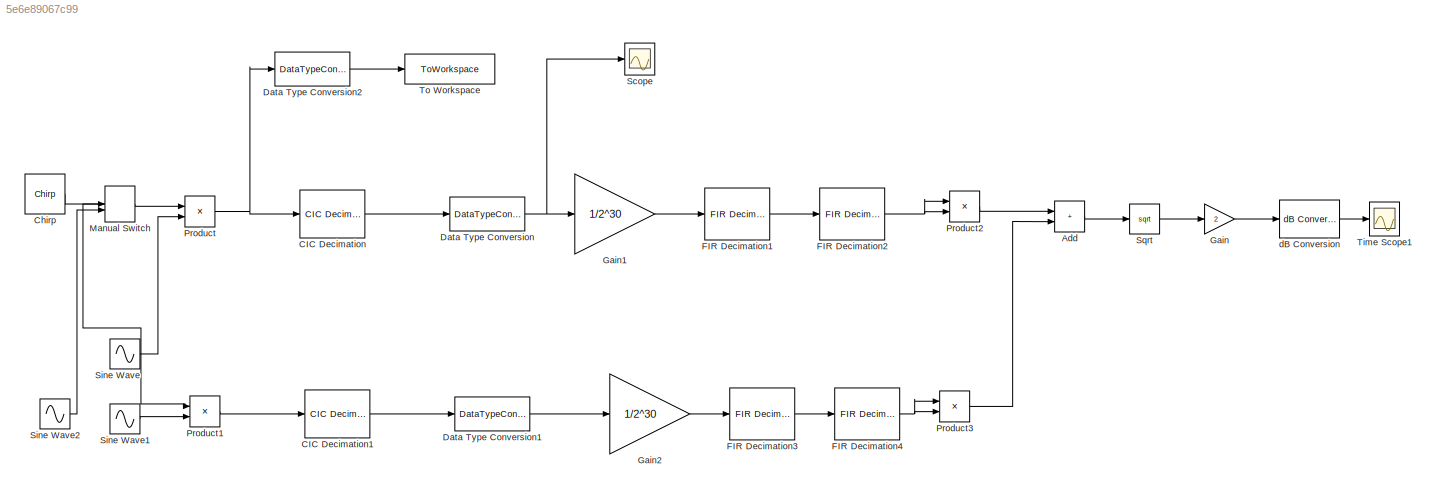
MODEL mdl_5e6e89067c99
KIND model
CONFIG AbsTol = auto
CONFIG EnableMultiTasking = off
CONFIG FixedStep = 1/69.333e3
CONFIG MaxStep = auto
CONFIG MinStep = auto
CONFIG PreLoadFcn = gsmcoeffs
CONFIG RelTol = 1e-3
CONFIG SampleTimeConstraint = Unconstrained
CONFIG SolverName = FixedStepDiscrete
CONFIG StartTime = 0.0
CONFIG StopTime = 4
BLOCK [Sum] Add
  IconShape = rectangular
  Ports = [2, 1]
BLOCK [Reference] CIC Decimation  REF=dspobslib/CIC
Decimation
  Ports = [1, 1]
  SourceBlock = dspobslib/CIC\nDecimation
  SourceProductBaseCode = DS
  SourceType = Obsolete CIC Decimation
  UserDataPersistent = on
BLOCK [Reference] CIC Decimation1  REF=dspmlti4/CIC
Decimation
  Ports = [1, 1]
  SourceBlock = dspmlti4/CIC\nDecimation
  SourceProductBaseCode = DS
  SourceType = CIC Decimation
  UserDataPersistent = on
BLOCK [Reference] Chirp  REF=dspsrcs4/Chirp
  Ports = [0, 1]
  SourceBlock = dspsrcs4/Chirp
  SourceProductBaseCode = DS
  SourceType = Chirp
BLOCK [DataTypeConversion] Data Type Conversion
  OutDataTypeStr = double
  RndMeth = Floor
  SaturateOnIntegerOverflow = off
BLOCK [DataTypeConversion] Data Type Conversion1
  OutDataTypeStr = double
  RndMeth = Floor
  SaturateOnIntegerOverflow = off
BLOCK [DataTypeConversion] Data Type Conversion2
  OutDataTypeStr = double
  RndMeth = Floor
  SaturateOnIntegerOverflow = off
BLOCK [Reference] FIR Decimation1  REF=dspmlti4/FIR
Decimation
  Ports = [1, 1]
  SourceBlock = dspmlti4/FIR\nDecimation
  SourceProductBaseCode = DS
  SourceType = FIR Decimation
  UserDataPersistent = on
BLOCK [Reference] FIR Decimation2  REF=dspmlti4/FIR
Decimation
  Ports = [1, 1]
  SourceBlock = dspmlti4/FIR\nDecimation
  SourceProductBaseCode = DS
  SourceType = FIR Decimation
  UserDataPersistent = on
BLOCK [Reference] FIR Decimation3  REF=dspmlti4/FIR
Decimation
  Ports = [1, 1]
  SourceBlock = dspmlti4/FIR\nDecimation
  SourceProductBaseCode = DS
  SourceType = FIR Decimation
  UserDataPersistent = on
BLOCK [Reference] FIR Decimation4  REF=dspmlti4/FIR
Decimation
  Ports = [1, 1]
  SourceBlock = dspmlti4/FIR\nDecimation
  SourceProductBaseCode = DS
  SourceType = FIR Decimation
  UserDataPersistent = on
BLOCK [Gain] Gain
  Gain = 2
BLOCK [Gain] Gain1
  Gain = 1/2^30
BLOCK [Gain] Gain2
  Gain = 1/2^30
BLOCK [ManualSwitch] Manual Switch
BLOCK [Product] Product
  OutDataTypeStr = fixdt(1,16,14)
  OutMax = 1
  OutMin = 0
  Ports = [2, 1]
BLOCK [Product] Product1
  OutDataTypeStr = fixdt(1,16,14)
  OutMax = 1
  OutMin = 0
  Ports = [2, 1]
BLOCK [Product] Product2
  OutDataTypeStr = double
  OutMax = 1
  OutMin = 0
  Ports = [2, 1]
BLOCK [Product] Product3
  OutDataTypeStr = double
  OutMax = 1
  OutMin = 0
  Ports = [2, 1]
BLOCK [Scope] Scope
  Floating = off
  NumInputPorts = 1
  Ports = [1]
  ScopeSpecificationString = Simulink.scopes.TimeScopeBlockCfg('CurrentConfiguration', extmgr.ConfigurationSet(extmgr.Configuration('Core','General UI',true),extmgr.Configuration('Core','Source UI',true),extmgr.Configuration('Sources','WiredSimulink',true,'DataLoggingVariableName','ScopeData1'),extmgr.Configuration('Visuals','Time Domain',true,'SerializedDisplays',{struct('MinYLimReal','-658320878.36494','MaxYLimReal','655377...<+1461ch>
BLOCK [Sin] Sine Wave
  Frequency = 14.44e3*2*pi
  Ports = [0, 1]
  SampleTime = 1/69.333e3
BLOCK [Sin] Sine Wave1
  Frequency = 14.44e3*2*pi
  Phase = pi/2
  Ports = [0, 1]
  SampleTime = 1/69.333e3
BLOCK [Sin] Sine Wave2
  Frequency = 14.44e3*2*pi
  Phase = pi/2
  Ports = [0, 1]
  SampleTime = 1/69.333e3
BLOCK [Sqrt] Sqrt
BLOCK [Scope] Time Scope1
  DefaultConfigurationName = spbscopes.TimeScopeBlockCfg
  Floating = off
  NumInputPorts = 1
  Ports = [1]
  ScopeSpecificationString = spbscopes.TimeScopeBlockCfg('CurrentConfiguration', extmgr.ConfigurationSet(extmgr.Configuration('Core','General UI',true,'ShowNewAction',true,'ShowLoadConfigSet',true,'ShowSaveConfigSet',true),extmgr.Configuration('Core','Source UI',true,'ShowRecentSources',true),extmgr.Configuration('Sources','WiredSimulink',true,'PointsPerSignal',500000,'DataLoggingVariableName','ScopeData1'),extmgr.Configurati...<+1601ch>
BLOCK [ToWorkspace] To Workspace
  FixptAsFi = on
  MaxDataPoints = inf
  Ports = [1]
  SampleTime = -1
  Save2DSignal = 2-D array (concatenate along first dimension)
  VariableName = simout
BLOCK [Reference] dB Conversion  REF=dspmathops/dB Conversion
  Ports = [1, 1]
  SourceBlock = dspmathops/dB Conversion
  SourceProductBaseCode = DS
  SourceType = dB Conversion
LINE Add:1 -> Sqrt:1
LINE CIC Decimation1:1 -> Data Type Conversion1:1
LINE CIC Decimation:1 -> Data Type Conversion:1
LINE Chirp:1 -> Manual Switch:1
LINE Data Type Conversion1:1 -> Gain2:1
LINE Data Type Conversion2:1 -> To Workspace:1
NET Data Type Conversion:1 -> Gain1:1, Scope:1
LINE FIR Decimation1:1 -> FIR Decimation2:1
NET FIR Decimation2:1 -> Product2:1, Product2:2
LINE FIR Decimation3:1 -> FIR Decimation4:1
NET FIR Decimation4:1 -> Product3:1, Product3:2
LINE Gain1:1 -> FIR Decimation1:1
LINE Gain2:1 -> FIR Decimation3:1
LINE Gain:1 -> dB Conversion:1
NET Manual Switch:1 -> Product1:1, Product:1
LINE Product1:1 -> CIC Decimation1:1
LINE Product2:1 -> Add:1
LINE Product3:1 -> Add:2
NET Product:1 -> CIC Decimation:1, Data Type Conversion2:1
LINE Sine Wave1:1 -> Product1:2
LINE Sine Wave2:1 -> Manual Switch:2
LINE Sine Wave:1 -> Product:2
LINE Sqrt:1 -> Gain:1
LINE dB Conversion:1 -> Time Scope1:1
note: NET lines group one-source signal fan-out (src -> all destinations, sorted); 1:1 wires keep LINE
